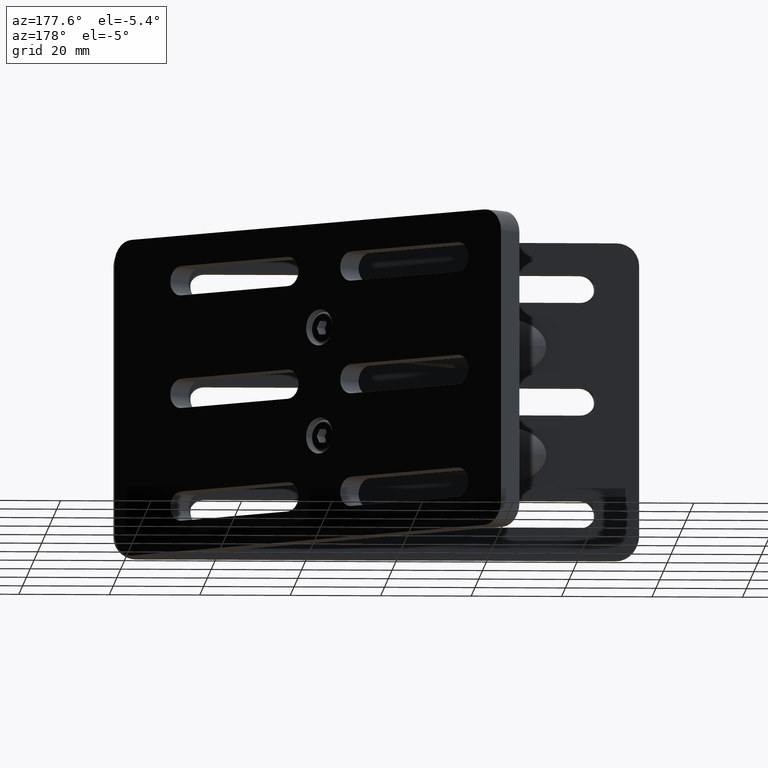
[diagram: clean part render]
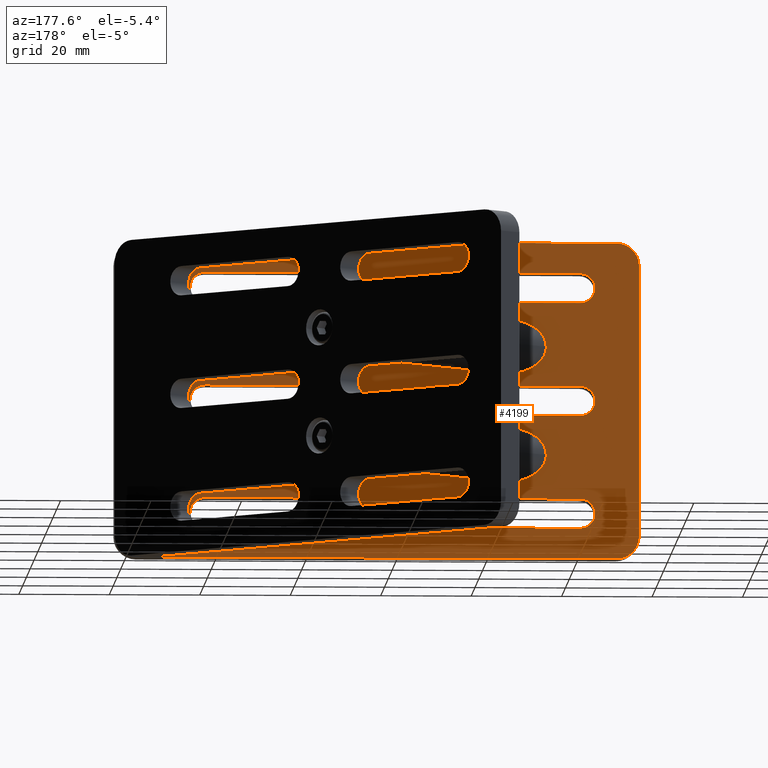
[diagram: same view with one face highlighted and labeled with its STEP entity id]
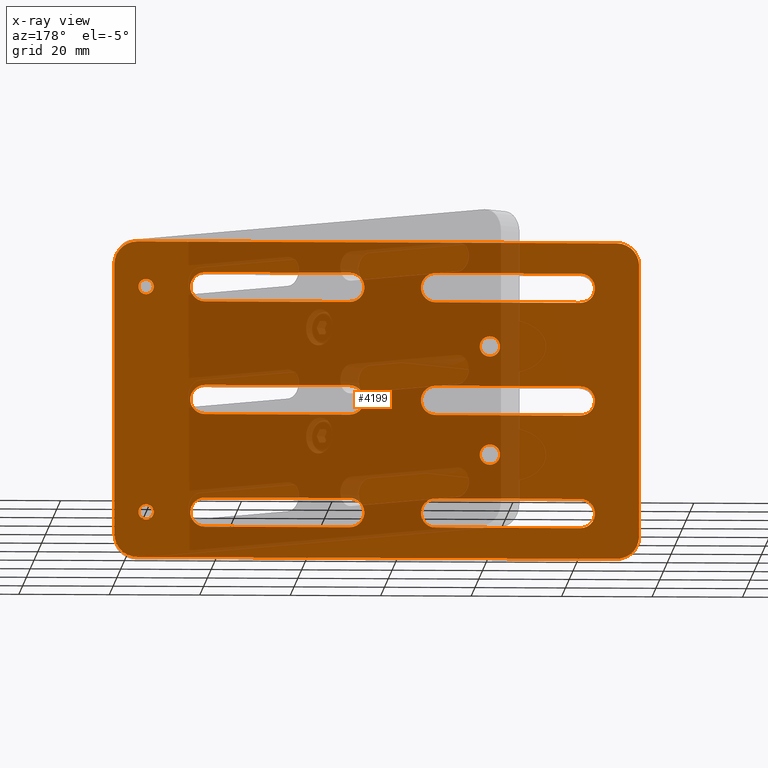
[diagram: x-ray of the same camera — body ghosted, the highlighted face saturated]
A machine part, auxiliary view. The second image highlights one B-rep face of the part: STEP entity #4199.
The next image is the same camera in x-ray: the body ghosted, the highlighted face saturated — about 47% of this face is hidden behind the body in this view.
In plain terms, the highlighted planar face has unit normal (0, 1, 0).
Its self-contained STEP definition (entity closure, byte-faithful):
#4 = CIRCLE ( 'NONE', #177, 3.250000000000000400 ) ;
#25 = LINE ( 'NONE', #2277, #2641 ) ;
#42 = DIRECTION ( 'NONE',  ( -0.0000000000000000000, -1.000000000000000000, -0.0000000000000000000 ) ) ;
#53 = VERTEX_POINT ( 'NONE', #6909 ) ;
#65 = DIRECTION ( 'NONE',  ( -1.000000000000000000, -0.0000000000000000000, -1.897353801849650000E-016 ) ) ;
#117 = VECTOR ( 'NONE', #3018, 1000.000000000000000 ) ;
#127 = CARTESIAN_POINT ( 'NONE',  ( 56.50000000000012100, 3.000000000000000000, -34.99999999999999300 ) ) ;
#138 = EDGE_CURVE ( 'NONE', #303, #1371, #465, .T. ) ;
#142 = CARTESIAN_POINT ( 'NONE',  ( 9.499999999999591400, 3.000000000000000000, 28.25000000000000000 ) ) ;
#175 = DIRECTION ( 'NONE',  ( 0.0000000000000000000, 1.000000000000000000, 0.0000000000000000000 ) ) ;
#177 = AXIS2_PLACEMENT_3D ( 'NONE', #2165, #3257, #7057 ) ;
#232 = VERTEX_POINT ( 'NONE', #2063 ) ;
#243 = CARTESIAN_POINT ( 'NONE',  ( -54.50000000000000000, 3.000000000000000000, 30.00000000000001800 ) ) ;
#251 = AXIS2_PLACEMENT_3D ( 'NONE', #3081, #868, #1431 ) ;
#254 = DIRECTION ( 'NONE',  ( 0.0000000000000000000, 1.000000000000000000, 0.0000000000000000000 ) ) ;
#255 = CARTESIAN_POINT ( 'NONE',  ( -41.49999999999960200, 3.000000000000000000, -21.74999999999994700 ) ) ;
#259 = CARTESIAN_POINT ( 'NONE',  ( -41.49999999999963100, 3.000000000000000000, 28.25000000000003900 ) ) ;
#263 = DIRECTION ( 'NONE',  ( 0.0000000000000000000, 0.0000000000000000000, 1.000000000000000000 ) ) ;
#272 = DIRECTION ( 'NONE',  ( 0.0000000000000000000, 0.0000000000000000000, 1.000000000000000000 ) ) ;
#276 = VERTEX_POINT ( 'NONE', #5953 ) ;
#303 = VERTEX_POINT ( 'NONE', #6422 ) ;
#342 = ORIENTED_EDGE ( 'NONE', *, *, #434, .T. ) ;
#365 = CARTESIAN_POINT ( 'NONE',  ( -41.50000000000010700, 3.000000000000000000, -3.250000000000010200 ) ) ;
#368 = CIRCLE ( 'NONE', #1500, 3.250000000000002700 ) ;
#373 = AXIS2_PLACEMENT_3D ( 'NONE', #2403, #175, #6763 ) ;
#391 = PLANE ( 'NONE',  #5222 ) ;
#434 = EDGE_CURVE ( 'NONE', #5840, #1172, #4796, .T. ) ;
#438 = CARTESIAN_POINT ( 'NONE',  ( 41.49999999999958800, 3.000000000000000000, -24.99999999999995400 ) ) ;
#459 = ORIENTED_EDGE ( 'NONE', *, *, #2404, .F. ) ;
#465 = CIRCLE ( 'NONE', #1220, 3.250000000000000900 ) ;
#472 = LINE ( 'NONE', #3059, #3078 ) ;
#475 = DIRECTION ( 'NONE',  ( 0.0000000000000000000, 0.0000000000000000000, -1.000000000000000000 ) ) ;
#488 = VECTOR ( 'NONE', #973, 1000.000000000000000 ) ;
#495 = EDGE_LOOP ( 'NONE', ( #1194, #2768, #6840, #6986 ) ) ;
#514 = CARTESIAN_POINT ( 'NONE',  ( 9.499999999999969800, 3.000000000000000000, 3.250000000000064400 ) ) ;
#530 = AXIS2_PLACEMENT_3D ( 'NONE', #2817, #42, #597 ) ;
#565 = DIRECTION ( 'NONE',  ( -0.0000000000000000000, -1.000000000000000000, -0.0000000000000000000 ) ) ;
#597 = DIRECTION ( 'NONE',  ( 0.0000000000000000000, 0.0000000000000000000, -1.000000000000000000 ) ) ;
#604 = ORIENTED_EDGE ( 'NONE', *, *, #6246, .F. ) ;
#616 = CIRCLE ( 'NONE', #5358, 1.700000000000000200 ) ;
#623 = VERTEX_POINT ( 'NONE', #3271 ) ;
#636 = CARTESIAN_POINT ( 'NONE',  ( 54.50000000000012800, 3.000000000000000000, 25.00000000000000000 ) ) ;
#680 = EDGE_LOOP ( 'NONE', ( #2163, #459, #2937, #2994 ) ) ;
#696 = DIRECTION ( 'NONE',  ( -1.000000000000000000, -0.0000000000000000000, -0.0000000000000000000 ) ) ;
#713 = CARTESIAN_POINT ( 'NONE',  ( -41.50000000000010700, 3.000000000000000000, 3.250000000000000000 ) ) ;
#728 = DIRECTION ( 'NONE',  ( 0.0000000000000000000, 1.000000000000000000, 0.0000000000000000000 ) ) ;
#740 = CIRCLE ( 'NONE', #4748, 3.249999999999996000 ) ;
#749 = CARTESIAN_POINT ( 'NONE',  ( 41.49999999999962300, 3.000000000000000000, 25.00000000000002500 ) ) ;
#754 = DIRECTION ( 'NONE',  ( 1.000000000000000000, -0.0000000000000000000, 4.336808689942126700E-016 ) ) ;
#771 = ORIENTED_EDGE ( 'NONE', *, *, #1518, .T. ) ;
#775 = VERTEX_POINT ( 'NONE', #5026 ) ;
#788 = FACE_BOUND ( 'NONE', #4614, .T. ) ;
#799 = DIRECTION ( 'NONE',  ( -0.0000000000000000000, 1.000000000000000000, 0.0000000000000000000 ) ) ;
#806 = EDGE_CURVE ( 'NONE', #1550, #6222, #1602, .T. ) ;
#818 = VERTEX_POINT ( 'NONE', #713 ) ;
#822 = DIRECTION ( 'NONE',  ( 0.0000000000000000000, 1.000000000000000000, 0.0000000000000000000 ) ) ;
#858 = CARTESIAN_POINT ( 'NONE',  ( 41.49999999999958800, 3.000000000000000000, -28.24999999999995000 ) ) ;
#868 = DIRECTION ( 'NONE',  ( 0.0000000000000000000, 1.000000000000000000, 0.0000000000000000000 ) ) ;
#876 = CARTESIAN_POINT ( 'NONE',  ( 56.50000000000012100, 3.000000000000000000, 35.00000000000001400 ) ) ;
#934 = EDGE_CURVE ( 'NONE', #5728, #4797, #5637, .T. ) ;
#939 = ORIENTED_EDGE ( 'NONE', *, *, #4338, .F. ) ;
#961 = VERTEX_POINT ( 'NONE', #1098 ) ;
#967 = CARTESIAN_POINT ( 'NONE',  ( 56.50000000000012100, 3.000000000000000000, -29.99999999999998900 ) ) ;
#973 = DIRECTION ( 'NONE',  ( -1.000000000000000000, 0.0000000000000000000, -6.505213034913190300E-016 ) ) ;
#979 = CIRCLE ( 'NONE', #5568, 5.000000000000000900 ) ;
#1023 = CARTESIAN_POINT ( 'NONE',  ( -41.49999999999960200, 3.000000000000000000, -24.99999999999994300 ) ) ;
#1026 = CARTESIAN_POINT ( 'NONE',  ( 9.500000000000008900, 3.000000000000000000, -3.249999999999936100 ) ) ;
#1042 = ORIENTED_EDGE ( 'NONE', *, *, #3039, .T. ) ;
#1045 = VERTEX_POINT ( 'NONE', #1242 ) ;
#1064 = FACE_BOUND ( 'NONE', #2644, .T. ) ;
#1098 = CARTESIAN_POINT ( 'NONE',  ( -9.499999999999593200, 3.000000000000000000, 28.25000000000000400 ) ) ;
#1147 = EDGE_CURVE ( 'NONE', #2734, #2090, #4787, .T. ) ;
#1172 = VERTEX_POINT ( 'NONE', #6852 ) ;
#1190 = EDGE_CURVE ( 'NONE', #961, #1895, #368, .T. ) ;
#1194 = ORIENTED_EDGE ( 'NONE', *, *, #1147, .F. ) ;
#1213 = VERTEX_POINT ( 'NONE', #243 ) ;
#1220 = AXIS2_PLACEMENT_3D ( 'NONE', #5256, #4638, #6371 ) ;
#1242 = CARTESIAN_POINT ( 'NONE',  ( 61.50000000000011400, 3.000000000000000000, 30.00000000000001800 ) ) ;
#1243 = DIRECTION ( 'NONE',  ( -0.0000000000000000000, 1.000000000000000000, 0.0000000000000000000 ) ) ;
#1264 = VECTOR ( 'NONE', #2767, 1000.000000000000000 ) ;
#1323 = EDGE_CURVE ( 'NONE', #6744, #1213, #4696, .T. ) ;
#1371 = VERTEX_POINT ( 'NONE', #5365 ) ;
#1394 = DIRECTION ( 'NONE',  ( -0.0000000000000000000, -0.0000000000000000000, 1.000000000000000000 ) ) ;
#1401 = FACE_BOUND ( 'NONE', #6731, .T. ) ;
#1431 = DIRECTION ( 'NONE',  ( 0.0000000000000000000, 0.0000000000000000000, 1.000000000000000000 ) ) ;
#1437 = ORIENTED_EDGE ( 'NONE', *, *, #2598, .F. ) ;
#1500 = AXIS2_PLACEMENT_3D ( 'NONE', #6778, #5150, #3480 ) ;
#1501 = DIRECTION ( 'NONE',  ( 0.0000000000000000000, 0.0000000000000000000, 1.000000000000000000 ) ) ;
#1518 = EDGE_CURVE ( 'NONE', #775, #6378, #5373, .T. ) ;
#1545 = VERTEX_POINT ( 'NONE', #514 ) ;
#1550 = VERTEX_POINT ( 'NONE', #2278 ) ;
#1556 = ORIENTED_EDGE ( 'NONE', *, *, #6437, .T. ) ;
#1586 = DIRECTION ( 'NONE',  ( 0.0000000000000000000, 0.0000000000000000000, 1.000000000000000000 ) ) ;
#1588 = DIRECTION ( 'NONE',  ( 0.0000000000000000000, 1.000000000000000000, 0.0000000000000000000 ) ) ;
#1602 = LINE ( 'NONE', #6219, #117 ) ;
#1630 = EDGE_LOOP ( 'NONE', ( #4016, #4484, #4371, #6332 ) ) ;
#1698 = EDGE_CURVE ( 'NONE', #2468, #6469, #2300, .T. ) ;
#1746 = EDGE_CURVE ( 'NONE', #6469, #2468, #5300, .T. ) ;
#1757 = EDGE_CURVE ( 'NONE', #4797, #232, #2310, .T. ) ;
#1761 = DIRECTION ( 'NONE',  ( 0.0000000000000000000, 0.0000000000000000000, -1.000000000000000000 ) ) ;
#1788 = CARTESIAN_POINT ( 'NONE',  ( 9.500000000000390800, 3.000000000000000000, -24.99999999999997200 ) ) ;
#1791 = CARTESIAN_POINT ( 'NONE',  ( 9.499999999999595000, 3.000000000000000000, 21.74999999999999600 ) ) ;
#1819 = EDGE_CURVE ( 'NONE', #818, #303, #472, .T. ) ;
#1895 = VERTEX_POINT ( 'NONE', #2532 ) ;
#1900 = CARTESIAN_POINT ( 'NONE',  ( 61.50000000000011400, 3.000000000000000000, -29.99999999999998900 ) ) ;
#1910 = VECTOR ( 'NONE', #2260, 1000.000000000000000 ) ;
#1917 = VERTEX_POINT ( 'NONE', #1992 ) ;
#1959 = EDGE_CURVE ( 'NONE', #276, #2734, #5996, .T. ) ;
#1992 = CARTESIAN_POINT ( 'NONE',  ( -41.49999999999962300, 3.000000000000000000, 21.75000000000003200 ) ) ;
#1994 = CARTESIAN_POINT ( 'NONE',  ( -41.49999999999960200, 3.000000000000000000, -28.24999999999994000 ) ) ;
#2001 = ORIENTED_EDGE ( 'NONE', *, *, #2522, .T. ) ;
#2016 = LINE ( 'NONE', #5195, #6236 ) ;
#2025 = CARTESIAN_POINT ( 'NONE',  ( -41.50000000000010700, 3.000000000000000000, -5.082284216461399800E-015 ) ) ;
#2042 = DIRECTION ( 'NONE',  ( -0.0000000000000000000, -1.000000000000000000, -0.0000000000000000000 ) ) ;
#2049 = CARTESIAN_POINT ( 'NONE',  ( 54.50000000000012800, 3.000000000000000000, -25.00000000000000000 ) ) ;
#2053 = AXIS2_PLACEMENT_3D ( 'NONE', #749, #799, #3604 ) ;
#2063 = CARTESIAN_POINT ( 'NONE',  ( 41.49999999999962300, 3.000000000000000000, 21.75000000000002100 ) ) ;
#2090 = VERTEX_POINT ( 'NONE', #5397 ) ;
#2105 = ORIENTED_EDGE ( 'NONE', *, *, #1757, .F. ) ;
#2114 = LINE ( 'NONE', #3896, #4870 ) ;
#2121 = CIRCLE ( 'NONE', #2436, 2.249999999999998700 ) ;
#2163 = ORIENTED_EDGE ( 'NONE', *, *, #4467, .F. ) ;
#2165 = CARTESIAN_POINT ( 'NONE',  ( 41.49999999999998600, 3.000000000000000000, 3.364723050961610000E-013 ) ) ;
#2179 = ORIENTED_EDGE ( 'NONE', *, *, #4137, .F. ) ;
#2184 = VERTEX_POINT ( 'NONE', #4859 ) ;
#2194 = EDGE_CURVE ( 'NONE', #6446, #4349, #2121, .T. ) ;
#2200 = DIRECTION ( 'NONE',  ( -0.0000000000000000000, -1.000000000000000000, -0.0000000000000000000 ) ) ;
#2209 = CIRCLE ( 'NONE', #6274, 5.000000000000000900 ) ;
#2217 = AXIS2_PLACEMENT_3D ( 'NONE', #438, #5908, #5309 ) ;
#2244 = LINE ( 'NONE', #6402, #6280 ) ;
#2260 = DIRECTION ( 'NONE',  ( -1.156482317317871500E-016, 0.0000000000000000000, -1.000000000000000000 ) ) ;
#2272 = LINE ( 'NONE', #2793, #1910 ) ;
#2277 = CARTESIAN_POINT ( 'NONE',  ( 41.49999999999962300, 3.000000000000000000, 21.75000000000002100 ) ) ;
#2278 = CARTESIAN_POINT ( 'NONE',  ( 41.50000000000000700, 3.000000000000000000, -3.249999999999662000 ) ) ;
#2279 = CARTESIAN_POINT ( 'NONE',  ( -21.49999999999999600, 2.999999999999999100, -14.25000000000000900 ) ) ;
#2285 = CARTESIAN_POINT ( 'NONE',  ( -54.50000000000000000, 3.000000000000000000, -29.99999999999998900 ) ) ;
#2300 = CIRCLE ( 'NONE', #5229, 1.700000000000000200 ) ;
#2310 = CIRCLE ( 'NONE', #2053, 3.250000000000002700 ) ;
#2319 = CARTESIAN_POINT ( 'NONE',  ( 54.50000000000012800, 3.000000000000000000, 23.30000000000000100 ) ) ;
#2359 = CARTESIAN_POINT ( 'NONE',  ( -9.500000000000403200, 3.000000000000000000, -21.74999999999996800 ) ) ;
#2402 = DIRECTION ( 'NONE',  ( 0.0000000000000000000, 0.0000000000000000000, -1.000000000000000000 ) ) ;
#2403 = CARTESIAN_POINT ( 'NONE',  ( -9.500000000000406800, 3.000000000000000000, -24.99999999999996800 ) ) ;
#2404 = EDGE_CURVE ( 'NONE', #1545, #53, #5210, .T. ) ;
#2430 = AXIS2_PLACEMENT_3D ( 'NONE', #1788, #5570, #1761 ) ;
#2436 = AXIS2_PLACEMENT_3D ( 'NONE', #5954, #2042, #6962 ) ;
#2454 = FACE_BOUND ( 'NONE', #680, .T. ) ;
#2458 = CIRCLE ( 'NONE', #4298, 3.250000000000000400 ) ;
#2468 = VERTEX_POINT ( 'NONE', #2319 ) ;
#2499 = EDGE_LOOP ( 'NONE', ( #771, #2001 ) ) ;
#2522 = EDGE_CURVE ( 'NONE', #6378, #775, #6420, .T. ) ;
#2532 = CARTESIAN_POINT ( 'NONE',  ( -9.499999999999598500, 3.000000000000000000, 21.75000000000000000 ) ) ;
#2533 = FACE_BOUND ( 'NONE', #6847, .T. ) ;
#2554 = DIRECTION ( 'NONE',  ( 0.0000000000000000000, 0.0000000000000000000, 1.000000000000000000 ) ) ;
#2589 = DIRECTION ( 'NONE',  ( 0.0000000000000000000, 1.000000000000000000, 0.0000000000000000000 ) ) ;
#2598 = EDGE_CURVE ( 'NONE', #1895, #1917, #2114, .T. ) ;
#2641 = VECTOR ( 'NONE', #5545, 1000.000000000000000 ) ;
#2644 = EDGE_LOOP ( 'NONE', ( #2179, #5250 ) ) ;
#2681 = VERTEX_POINT ( 'NONE', #1791 ) ;
#2708 = EDGE_LOOP ( 'NONE', ( #1556, #342, #3564, #4754, #4057, #4469, #1042, #2848 ) ) ;
#2709 = CARTESIAN_POINT ( 'NONE',  ( 54.50000000000012800, 3.000000000000000000, -26.70000000000000300 ) ) ;
#2721 = EDGE_CURVE ( 'NONE', #2681, #5728, #7008, .T. ) ;
#2727 = EDGE_CURVE ( 'NONE', #2090, #5181, #3319, .T. ) ;
#2734 = VERTEX_POINT ( 'NONE', #2359 ) ;
#2766 = VERTEX_POINT ( 'NONE', #1900 ) ;
#2767 = DIRECTION ( 'NONE',  ( 1.000000000000000000, -0.0000000000000000000, 8.673617379884027600E-016 ) ) ;
#2768 = ORIENTED_EDGE ( 'NONE', *, *, #1959, .F. ) ;
#2787 = VERTEX_POINT ( 'NONE', #4091 ) ;
#2793 = CARTESIAN_POINT ( 'NONE',  ( 61.50000000000011400, 3.000000000000000000, 30.00000000000001800 ) ) ;
#2799 = EDGE_CURVE ( 'NONE', #6396, #961, #2016, .T. ) ;
#2806 = CARTESIAN_POINT ( 'NONE',  ( -21.50000000000000000, 2.999999999999999100, 11.99999999999998900 ) ) ;
#2817 = CARTESIAN_POINT ( 'NONE',  ( -21.49999999999999600, 2.999999999999999100, -12.00000000000001100 ) ) ;
#2827 = ORIENTED_EDGE ( 'NONE', *, *, #4965, .F. ) ;
#2848 = ORIENTED_EDGE ( 'NONE', *, *, #6670, .T. ) ;
#2936 = VERTEX_POINT ( 'NONE', #858 ) ;
#2937 = ORIENTED_EDGE ( 'NONE', *, *, #3735, .F. ) ;
#2957 = ORIENTED_EDGE ( 'NONE', *, *, #1746, .F. ) ;
#2980 = CARTESIAN_POINT ( 'NONE',  ( 41.49999999999958800, 3.000000000000000000, -21.74999999999995700 ) ) ;
#2994 = ORIENTED_EDGE ( 'NONE', *, *, #806, .F. ) ;
#2998 = EDGE_CURVE ( 'NONE', #7054, #818, #5117, .T. ) ;
#3018 = DIRECTION ( 'NONE',  ( -1.000000000000000000, 0.0000000000000000000, -8.510987054011209800E-015 ) ) ;
#3034 = DIRECTION ( 'NONE',  ( 0.0000000000000000000, 1.000000000000000000, 0.0000000000000000000 ) ) ;
#3039 = EDGE_CURVE ( 'NONE', #4932, #1045, #979, .T. ) ;
#3041 = LINE ( 'NONE', #3386, #3134 ) ;
#3059 = CARTESIAN_POINT ( 'NONE',  ( -41.50000000000010700, 3.000000000000000000, 3.250000000000000000 ) ) ;
#3078 = VECTOR ( 'NONE', #6893, 1000.000000000000000 ) ;
#3081 = CARTESIAN_POINT ( 'NONE',  ( 56.50000000000012100, 3.000000000000000000, -29.99999999999998900 ) ) ;
#3124 = EDGE_CURVE ( 'NONE', #2787, #4932, #5123, .T. ) ;
#3134 = VECTOR ( 'NONE', #65, 1000.000000000000000 ) ;
#3143 = CARTESIAN_POINT ( 'NONE',  ( -54.50000000000000000, 3.000000000000000000, 30.00000000000001800 ) ) ;
#3169 = EDGE_CURVE ( 'NONE', #232, #2681, #25, .T. ) ;
#3216 = AXIS2_PLACEMENT_3D ( 'NONE', #6742, #254, #4270 ) ;
#3257 = DIRECTION ( 'NONE',  ( -0.0000000000000000000, 1.000000000000000000, 0.0000000000000000000 ) ) ;
#3259 = VECTOR ( 'NONE', #696, 1000.000000000000000 ) ;
#3271 = CARTESIAN_POINT ( 'NONE',  ( 9.500000000000390800, 3.000000000000000000, -21.74999999999997200 ) ) ;
#3307 = CARTESIAN_POINT ( 'NONE',  ( -49.50000000000000000, 3.000000000000000000, 35.00000000000000700 ) ) ;
#3319 = LINE ( 'NONE', #3479, #4957 ) ;
#3368 = EDGE_CURVE ( 'NONE', #1172, #6744, #2209, .T. ) ;
#3386 = CARTESIAN_POINT ( 'NONE',  ( -41.50000000000010700, 3.000000000000000000, -3.250000000000010200 ) ) ;
#3456 = DIRECTION ( 'NONE',  ( -0.0000000000000000000, 1.000000000000000000, 0.0000000000000000000 ) ) ;
#3477 = CIRCLE ( 'NONE', #2430, 3.249999999999999600 ) ;
#3479 = CARTESIAN_POINT ( 'NONE',  ( -41.49999999999960200, 3.000000000000000000, -28.24999999999994000 ) ) ;
#3480 = DIRECTION ( 'NONE',  ( 0.0000000000000000000, 0.0000000000000000000, 1.000000000000000000 ) ) ;
#3515 = CARTESIAN_POINT ( 'NONE',  ( 54.50000000000012800, 3.000000000000000000, 25.00000000000000000 ) ) ;
#3518 = CIRCLE ( 'NONE', #251, 4.999999999999993800 ) ;
#3564 = ORIENTED_EDGE ( 'NONE', *, *, #3368, .T. ) ;
#3604 = DIRECTION ( 'NONE',  ( 0.0000000000000000000, 0.0000000000000000000, -1.000000000000000000 ) ) ;
#3619 = ORIENTED_EDGE ( 'NONE', *, *, #2721, .F. ) ;
#3684 = DIRECTION ( 'NONE',  ( 0.0000000000000000000, 0.0000000000000000000, 1.000000000000000000 ) ) ;
#3735 = EDGE_CURVE ( 'NONE', #6222, #1545, #2458, .T. ) ;
#3751 = VECTOR ( 'NONE', #4420, 1000.000000000000000 ) ;
#3803 = CARTESIAN_POINT ( 'NONE',  ( 54.50000000000012800, 3.000000000000000000, -23.30000000000000100 ) ) ;
#3836 = DIRECTION ( 'NONE',  ( 0.0000000000000000000, 0.0000000000000000000, -1.000000000000000000 ) ) ;
#3848 = CARTESIAN_POINT ( 'NONE',  ( 41.49999999999962300, 3.000000000000000000, 28.25000000000002800 ) ) ;
#3880 = CIRCLE ( 'NONE', #6594, 1.700000000000000200 ) ;
#3896 = CARTESIAN_POINT ( 'NONE',  ( -41.49999999999962300, 3.000000000000000000, 21.75000000000003200 ) ) ;
#3917 = ORIENTED_EDGE ( 'NONE', *, *, #3169, .F. ) ;
#4016 = ORIENTED_EDGE ( 'NONE', *, *, #138, .F. ) ;
#4057 = ORIENTED_EDGE ( 'NONE', *, *, #4744, .T. ) ;
#4091 = CARTESIAN_POINT ( 'NONE',  ( -49.50000000000000000, 3.000000000000000000, 35.00000000000000700 ) ) ;
#4097 = CARTESIAN_POINT ( 'NONE',  ( 54.50000000000012800, 3.000000000000000000, -25.00000000000000000 ) ) ;
#4119 = CIRCLE ( 'NONE', #4984, 3.250000000000002700 ) ;
#4137 = EDGE_CURVE ( 'NONE', #5253, #5259, #616, .T. ) ;
#4157 = FACE_BOUND ( 'NONE', #6386, .T. ) ;
#4199 = ADVANCED_FACE ( 'NONE', ( #4857, #4157, #2533, #1064, #1401, #2454, #788, #5034, #6733, #4683, #7081 ), #391, .T. ) ;
#4242 = AXIS2_PLACEMENT_3D ( 'NONE', #4977, #565, #3836 ) ;
#4270 = DIRECTION ( 'NONE',  ( 0.0000000000000000000, 0.0000000000000000000, 1.000000000000000000 ) ) ;
#4298 = AXIS2_PLACEMENT_3D ( 'NONE', #6558, #1243, #475 ) ;
#4318 = ORIENTED_EDGE ( 'NONE', *, *, #2799, .F. ) ;
#4338 = EDGE_CURVE ( 'NONE', #2184, #623, #3477, .T. ) ;
#4349 = VERTEX_POINT ( 'NONE', #2279 ) ;
#4363 = CARTESIAN_POINT ( 'NONE',  ( 56.50000000000012100, 3.000000000000000000, 30.00000000000001800 ) ) ;
#4371 = ORIENTED_EDGE ( 'NONE', *, *, #2998, .F. ) ;
#4404 = DIRECTION ( 'NONE',  ( 0.0000000000000000000, 0.0000000000000000000, -1.000000000000000000 ) ) ;
#4420 = DIRECTION ( 'NONE',  ( 1.000000000000000000, -0.0000000000000000000, 8.510987054011209800E-015 ) ) ;
#4467 = EDGE_CURVE ( 'NONE', #53, #1550, #4, .T. ) ;
#4469 = ORIENTED_EDGE ( 'NONE', *, *, #3124, .T. ) ;
#4484 = ORIENTED_EDGE ( 'NONE', *, *, #1819, .F. ) ;
#4592 = DIRECTION ( 'NONE',  ( 0.0000000000000000000, 0.0000000000000000000, 1.000000000000000000 ) ) ;
#4600 = DIRECTION ( 'NONE',  ( 1.000000000000000000, 0.0000000000000000000, -1.084202172485503400E-015 ) ) ;
#4614 = EDGE_LOOP ( 'NONE', ( #2105, #4910, #3619, #3917 ) ) ;
#4631 = EDGE_CURVE ( 'NONE', #1371, #7054, #3041, .T. ) ;
#4638 = DIRECTION ( 'NONE',  ( 0.0000000000000000000, 1.000000000000000000, 0.0000000000000000000 ) ) ;
#4640 = CARTESIAN_POINT ( 'NONE',  ( -49.50000000000000000, 3.000000000000000000, -29.99999999999998900 ) ) ;
#4653 = DIRECTION ( 'NONE',  ( 0.0000000000000000000, 1.000000000000000000, 0.0000000000000000000 ) ) ;
#4655 = VERTEX_POINT ( 'NONE', #2980 ) ;
#4683 = FACE_BOUND ( 'NONE', #495, .T. ) ;
#4696 = LINE ( 'NONE', #3143, #6758 ) ;
#4707 = VECTOR ( 'NONE', #6881, 1000.000000000000000 ) ;
#4733 = AXIS2_PLACEMENT_3D ( 'NONE', #3515, #3034, #263 ) ;
#4734 = CARTESIAN_POINT ( 'NONE',  ( -21.49999999999999600, 2.999999999999999100, -9.750000000000012400 ) ) ;
#4735 = ORIENTED_EDGE ( 'NONE', *, *, #6113, .T. ) ;
#4744 = EDGE_CURVE ( 'NONE', #1213, #2787, #6728, .T. ) ;
#4748 = AXIS2_PLACEMENT_3D ( 'NONE', #1023, #6539, #1501 ) ;
#4754 = ORIENTED_EDGE ( 'NONE', *, *, #1323, .T. ) ;
#4756 = AXIS2_PLACEMENT_3D ( 'NONE', #6735, #3456, #2402 ) ;
#4787 = CIRCLE ( 'NONE', #373, 3.249999999999999600 ) ;
#4796 = LINE ( 'NONE', #5157, #3259 ) ;
#4797 = VERTEX_POINT ( 'NONE', #3848 ) ;
#4852 = AXIS2_PLACEMENT_3D ( 'NONE', #2025, #2589, #6920 ) ;
#4857 = FACE_BOUND ( 'NONE', #2499, .T. ) ;
#4859 = CARTESIAN_POINT ( 'NONE',  ( 9.500000000000392600, 3.000000000000000000, -28.24999999999996800 ) ) ;
#4870 = VECTOR ( 'NONE', #5022, 1000.000000000000000 ) ;
#4910 = ORIENTED_EDGE ( 'NONE', *, *, #934, .F. ) ;
#4921 = ORIENTED_EDGE ( 'NONE', *, *, #1698, .F. ) ;
#4932 = VERTEX_POINT ( 'NONE', #876 ) ;
#4957 = VECTOR ( 'NONE', #6239, 1000.000000000000000 ) ;
#4965 = EDGE_CURVE ( 'NONE', #623, #4655, #2244, .T. ) ;
#4977 = CARTESIAN_POINT ( 'NONE',  ( -21.50000000000000000, 2.999999999999999100, 11.99999999999998900 ) ) ;
#4984 = AXIS2_PLACEMENT_3D ( 'NONE', #6498, #7063, #6524 ) ;
#5022 = DIRECTION ( 'NONE',  ( -1.000000000000000000, -0.0000000000000000000, 1.084202172485503600E-015 ) ) ;
#5026 = CARTESIAN_POINT ( 'NONE',  ( -21.50000000000000000, 2.999999999999999100, 9.749999999999991100 ) ) ;
#5034 = FACE_BOUND ( 'NONE', #6066, .T. ) ;
#5117 = CIRCLE ( 'NONE', #4852, 3.250000000000004900 ) ;
#5123 = LINE ( 'NONE', #3307, #5205 ) ;
#5150 = DIRECTION ( 'NONE',  ( 0.0000000000000000000, 1.000000000000000000, 0.0000000000000000000 ) ) ;
#5157 = CARTESIAN_POINT ( 'NONE',  ( -49.50000000000000000, 3.000000000000000000, -34.99999999999999300 ) ) ;
#5181 = VERTEX_POINT ( 'NONE', #1994 ) ;
#5195 = CARTESIAN_POINT ( 'NONE',  ( -41.49999999999962300, 3.000000000000000000, 28.25000000000003900 ) ) ;
#5205 = VECTOR ( 'NONE', #6526, 1000.000000000000000 ) ;
#5210 = LINE ( 'NONE', #6567, #3751 ) ;
#5222 = AXIS2_PLACEMENT_3D ( 'NONE', #967, #6483, #7021 ) ;
#5229 = AXIS2_PLACEMENT_3D ( 'NONE', #636, #728, #4592 ) ;
#5232 = ORIENTED_EDGE ( 'NONE', *, *, #6490, .F. ) ;
#5250 = ORIENTED_EDGE ( 'NONE', *, *, #6930, .F. ) ;
#5253 = VERTEX_POINT ( 'NONE', #2709 ) ;
#5256 = CARTESIAN_POINT ( 'NONE',  ( -9.500000000000399700, 3.000000000000000000, -3.469446951953614200E-015 ) ) ;
#5259 = VERTEX_POINT ( 'NONE', #3803 ) ;
#5273 = CARTESIAN_POINT ( 'NONE',  ( 54.50000000000012800, 3.000000000000000000, 26.70000000000000300 ) ) ;
#5300 = CIRCLE ( 'NONE', #4733, 1.700000000000000200 ) ;
#5309 = DIRECTION ( 'NONE',  ( 0.0000000000000000000, 0.0000000000000000000, -1.000000000000000000 ) ) ;
#5332 = ORIENTED_EDGE ( 'NONE', *, *, #2194, .T. ) ;
#5358 = AXIS2_PLACEMENT_3D ( 'NONE', #2049, #1588, #3684 ) ;
#5365 = CARTESIAN_POINT ( 'NONE',  ( -9.500000000000403200, 3.000000000000000000, -3.250000000000004900 ) ) ;
#5373 = CIRCLE ( 'NONE', #6440, 2.249999999999998700 ) ;
#5397 = CARTESIAN_POINT ( 'NONE',  ( -9.500000000000410300, 3.000000000000000000, -28.24999999999996400 ) ) ;
#5545 = DIRECTION ( 'NONE',  ( -1.000000000000000000, 0.0000000000000000000, -8.673617379884027600E-016 ) ) ;
#5566 = CIRCLE ( 'NONE', #530, 2.249999999999998700 ) ;
#5568 = AXIS2_PLACEMENT_3D ( 'NONE', #4363, #5938, #1586 ) ;
#5570 = DIRECTION ( 'NONE',  ( -0.0000000000000000000, 1.000000000000000000, 0.0000000000000000000 ) ) ;
#5637 = LINE ( 'NONE', #6045, #1264 ) ;
#5728 = VERTEX_POINT ( 'NONE', #142 ) ;
#5840 = VERTEX_POINT ( 'NONE', #127 ) ;
#5854 = ORIENTED_EDGE ( 'NONE', *, *, #5984, .F. ) ;
#5908 = DIRECTION ( 'NONE',  ( -0.0000000000000000000, 1.000000000000000000, 0.0000000000000000000 ) ) ;
#5938 = DIRECTION ( 'NONE',  ( 0.0000000000000000000, 1.000000000000000000, 0.0000000000000000000 ) ) ;
#5953 = CARTESIAN_POINT ( 'NONE',  ( -41.49999999999960200, 3.000000000000000000, -21.74999999999994700 ) ) ;
#5954 = CARTESIAN_POINT ( 'NONE',  ( -21.49999999999999600, 2.999999999999999100, -12.00000000000001100 ) ) ;
#5984 = EDGE_CURVE ( 'NONE', #4655, #2936, #6100, .T. ) ;
#5996 = LINE ( 'NONE', #255, #4707 ) ;
#6045 = CARTESIAN_POINT ( 'NONE',  ( 41.49999999999962300, 3.000000000000000000, 28.25000000000002800 ) ) ;
#6066 = EDGE_LOOP ( 'NONE', ( #604, #1437, #6935, #4318 ) ) ;
#6100 = CIRCLE ( 'NONE', #2217, 3.249999999999996000 ) ;
#6113 = EDGE_CURVE ( 'NONE', #4349, #6446, #5566, .T. ) ;
#6186 = LINE ( 'NONE', #6489, #488 ) ;
#6219 = CARTESIAN_POINT ( 'NONE',  ( 41.50000000000000700, 3.000000000000000000, -3.249999999999663800 ) ) ;
#6222 = VERTEX_POINT ( 'NONE', #1026 ) ;
#6236 = VECTOR ( 'NONE', #4600, 1000.000000000000000 ) ;
#6239 = DIRECTION ( 'NONE',  ( -1.000000000000000000, -0.0000000000000000000, 8.673617379884255400E-016 ) ) ;
#6246 = EDGE_CURVE ( 'NONE', #1917, #6396, #4119, .T. ) ;
#6274 = AXIS2_PLACEMENT_3D ( 'NONE', #4640, #822, #2554 ) ;
#6280 = VECTOR ( 'NONE', #754, 1000.000000000000000 ) ;
#6332 = ORIENTED_EDGE ( 'NONE', *, *, #4631, .F. ) ;
#6371 = DIRECTION ( 'NONE',  ( 0.0000000000000000000, 0.0000000000000000000, 1.000000000000000000 ) ) ;
#6378 = VERTEX_POINT ( 'NONE', #6981 ) ;
#6386 = EDGE_LOOP ( 'NONE', ( #4735, #5332 ) ) ;
#6396 = VERTEX_POINT ( 'NONE', #259 ) ;
#6402 = CARTESIAN_POINT ( 'NONE',  ( 41.49999999999958800, 3.000000000000000000, -21.74999999999995700 ) ) ;
#6420 = CIRCLE ( 'NONE', #4242, 2.249999999999998700 ) ;
#6422 = CARTESIAN_POINT ( 'NONE',  ( -9.500000000000399700, 3.000000000000000000, 3.249999999999997300 ) ) ;
#6437 = EDGE_CURVE ( 'NONE', #2766, #5840, #3518, .T. ) ;
#6440 = AXIS2_PLACEMENT_3D ( 'NONE', #2806, #2200, #4404 ) ;
#6446 = VERTEX_POINT ( 'NONE', #4734 ) ;
#6469 = VERTEX_POINT ( 'NONE', #5273 ) ;
#6479 = EDGE_CURVE ( 'NONE', #5181, #276, #740, .T. ) ;
#6483 = DIRECTION ( 'NONE',  ( 0.0000000000000000000, 1.000000000000000000, 0.0000000000000000000 ) ) ;
#6489 = CARTESIAN_POINT ( 'NONE',  ( 41.49999999999958800, 3.000000000000000000, -28.24999999999995000 ) ) ;
#6490 = EDGE_CURVE ( 'NONE', #2936, #2184, #6186, .T. ) ;
#6498 = CARTESIAN_POINT ( 'NONE',  ( -41.49999999999962300, 3.000000000000000000, 25.00000000000003600 ) ) ;
#6524 = DIRECTION ( 'NONE',  ( 0.0000000000000000000, 0.0000000000000000000, 1.000000000000000000 ) ) ;
#6526 = DIRECTION ( 'NONE',  ( 1.000000000000000000, 0.0000000000000000000, 6.546126324440774500E-017 ) ) ;
#6539 = DIRECTION ( 'NONE',  ( 0.0000000000000000000, 1.000000000000000000, 0.0000000000000000000 ) ) ;
#6558 = CARTESIAN_POINT ( 'NONE',  ( 9.499999999999989300, 3.000000000000000000, 6.401143178881574200E-014 ) ) ;
#6567 = CARTESIAN_POINT ( 'NONE',  ( 41.49999999999996400, 3.000000000000000000, 3.250000000000336600 ) ) ;
#6594 = AXIS2_PLACEMENT_3D ( 'NONE', #4097, #4653, #272 ) ;
#6670 = EDGE_CURVE ( 'NONE', #1045, #2766, #2272, .T. ) ;
#6728 = CIRCLE ( 'NONE', #3216, 4.999999999999993800 ) ;
#6731 = EDGE_LOOP ( 'NONE', ( #5854, #2827, #939, #5232 ) ) ;
#6733 = FACE_BOUND ( 'NONE', #1630, .T. ) ;
#6735 = CARTESIAN_POINT ( 'NONE',  ( 9.499999999999593200, 3.000000000000000000, 24.99999999999999600 ) ) ;
#6742 = CARTESIAN_POINT ( 'NONE',  ( -49.50000000000000000, 3.000000000000000000, 30.00000000000001800 ) ) ;
#6744 = VERTEX_POINT ( 'NONE', #2285 ) ;
#6758 = VECTOR ( 'NONE', #1394, 1000.000000000000000 ) ;
#6763 = DIRECTION ( 'NONE',  ( 0.0000000000000000000, 0.0000000000000000000, 1.000000000000000000 ) ) ;
#6778 = CARTESIAN_POINT ( 'NONE',  ( -9.499999999999596800, 3.000000000000000000, 25.00000000000000000 ) ) ;
#6840 = ORIENTED_EDGE ( 'NONE', *, *, #6479, .F. ) ;
#6847 = EDGE_LOOP ( 'NONE', ( #4921, #2957 ) ) ;
#6852 = CARTESIAN_POINT ( 'NONE',  ( -49.50000000000000000, 3.000000000000000000, -34.99999999999999300 ) ) ;
#6881 = DIRECTION ( 'NONE',  ( 1.000000000000000000, 0.0000000000000000000, -6.505213034913190300E-016 ) ) ;
#6893 = DIRECTION ( 'NONE',  ( 1.000000000000000000, 0.0000000000000000000, -8.131516293641357200E-017 ) ) ;
#6909 = CARTESIAN_POINT ( 'NONE',  ( 41.49999999999996400, 3.000000000000000000, 3.250000000000336600 ) ) ;
#6920 = DIRECTION ( 'NONE',  ( 0.0000000000000000000, 0.0000000000000000000, 1.000000000000000000 ) ) ;
#6930 = EDGE_CURVE ( 'NONE', #5259, #5253, #3880, .T. ) ;
#6935 = ORIENTED_EDGE ( 'NONE', *, *, #1190, .F. ) ;
#6962 = DIRECTION ( 'NONE',  ( 0.0000000000000000000, 0.0000000000000000000, -1.000000000000000000 ) ) ;
#6981 = CARTESIAN_POINT ( 'NONE',  ( -21.50000000000000000, 2.999999999999999100, 14.24999999999998800 ) ) ;
#6986 = ORIENTED_EDGE ( 'NONE', *, *, #2727, .F. ) ;
#7008 = CIRCLE ( 'NONE', #4756, 3.250000000000002700 ) ;
#7021 = DIRECTION ( 'NONE',  ( 0.0000000000000000000, -0.0000000000000000000, 1.000000000000000000 ) ) ;
#7054 = VERTEX_POINT ( 'NONE', #365 ) ;
#7057 = DIRECTION ( 'NONE',  ( 0.0000000000000000000, 0.0000000000000000000, -1.000000000000000000 ) ) ;
#7063 = DIRECTION ( 'NONE',  ( 0.0000000000000000000, 1.000000000000000000, 0.0000000000000000000 ) ) ;
#7081 = FACE_OUTER_BOUND ( 'NONE', #2708, .T. ) ;